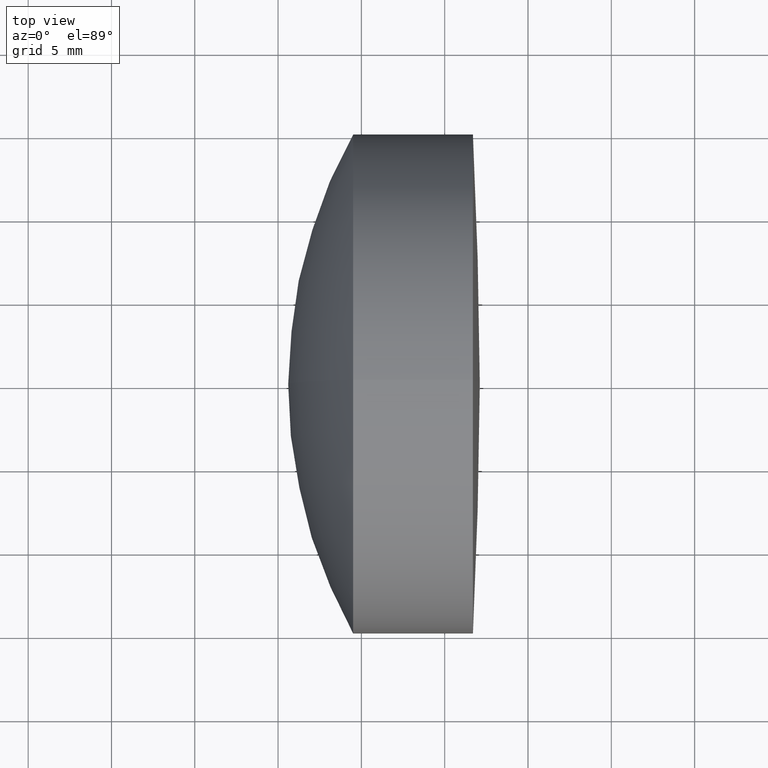
[diagram: clean part render]
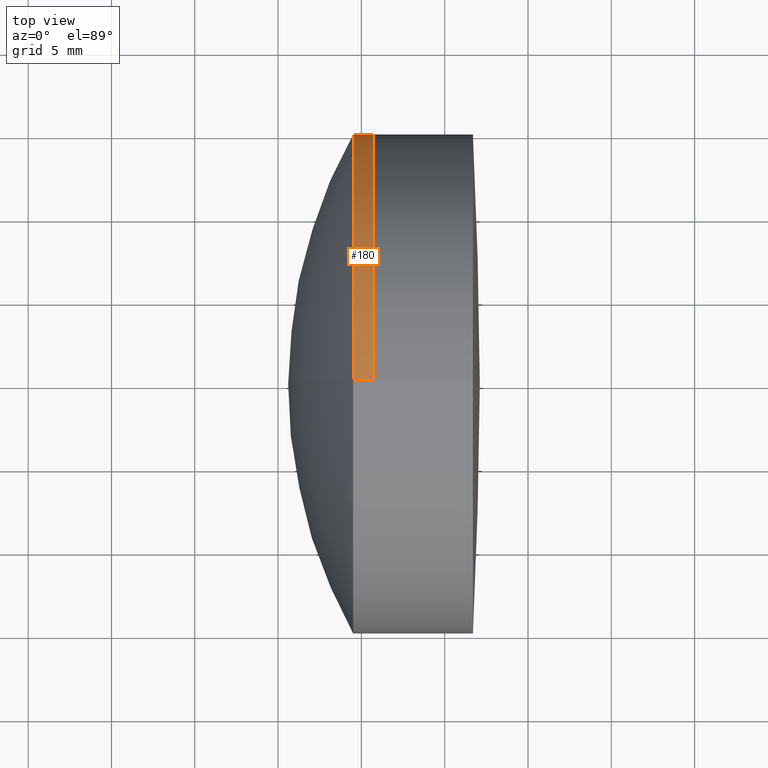
[diagram: same view with one face highlighted and labeled with its STEP entity id]
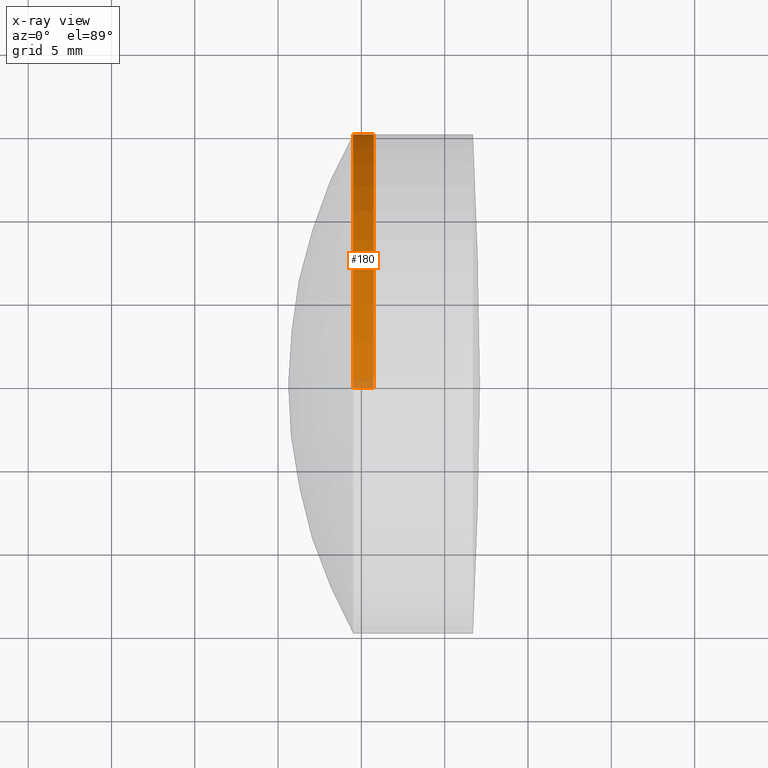
[diagram: x-ray of the same camera — body ghosted, the highlighted face saturated]
A machine part, top view. The second image highlights one B-rep face of the part: STEP entity #180.
The next image is the same camera in x-ray: the body ghosted, the highlighted face saturated — about 3% of this face is hidden behind the body in this view.
In plain terms, the highlighted cylindrical surface (partial cylindrical patch) has radius 15 mm, axis along (-1, -0, -0).
Its self-contained STEP definition (entity closure, byte-faithful):
#5 = CARTESIAN_POINT ( 'NONE',  ( 124.5233095260452400, 0.0000000000000000000, 0.0000000000000000000 ) ) ;
#11 = VERTEX_POINT ( 'NONE', #252 ) ;
#27 = VECTOR ( 'NONE', #139, 1000.000000000000000 ) ;
#28 = CIRCLE ( 'NONE', #95, 15.00000000000000000 ) ;
#63 = DIRECTION ( 'NONE',  ( 0.0000000000000000000, 0.0000000000000000000, 1.000000000000000000 ) ) ;
#67 = AXIS2_PLACEMENT_3D ( 'NONE', #5, #315, #283 ) ;
#79 = EDGE_LOOP ( 'NONE', ( #117, #249, #281, #129 ) ) ;
#84 = DIRECTION ( 'NONE',  ( 0.0000000000000000000, 0.0000000000000000000, 1.000000000000000000 ) ) ;
#92 = EDGE_CURVE ( 'NONE', #122, #333, #28, .T. ) ;
#93 = AXIS2_PLACEMENT_3D ( 'NONE', #119, #277, #84 ) ;
#95 = AXIS2_PLACEMENT_3D ( 'NONE', #99, #285, #63 ) ;
#99 = CARTESIAN_POINT ( 'NONE',  ( 340.7316331292209400, 0.0000000000000000000, 0.0000000000000000000 ) ) ;
#117 = ORIENTED_EDGE ( 'NONE', *, *, #92, .T. ) ;
#119 = CARTESIAN_POINT ( 'NONE',  ( 339.5064076100440500, 0.0000000000000000000, 0.0000000000000000000 ) ) ;
#122 = VERTEX_POINT ( 'NONE', #316 ) ;
#125 = CIRCLE ( 'NONE', #93, 14.99999999999999800 ) ;
#129 = ORIENTED_EDGE ( 'NONE', *, *, #214, .F. ) ;
#139 = DIRECTION ( 'NONE',  ( -1.000000000000000000, -0.0000000000000000000, -0.0000000000000000000 ) ) ;
#143 = CARTESIAN_POINT ( 'NONE',  ( 340.7316331292209400, 1.836970198721029600E-015, -15.00000000000000000 ) ) ;
#155 = CYLINDRICAL_SURFACE ( 'NONE', #67, 15.00000000000000000 ) ;
#160 = CARTESIAN_POINT ( 'NONE',  ( 124.5233095260452400, 1.836970198721029600E-015, -15.00000000000000000 ) ) ;
#165 = DIRECTION ( 'NONE',  ( -1.000000000000000000, -0.0000000000000000000, -0.0000000000000000000 ) ) ;
#170 = CARTESIAN_POINT ( 'NONE',  ( 339.5064076100440500, 0.0000000000000000000, 15.00000000000001800 ) ) ;
#180 = ADVANCED_FACE ( 'NONE', ( #338 ), #155, .T. ) ;
#214 = EDGE_CURVE ( 'NONE', #122, #279, #271, .T. ) ;
#227 = EDGE_CURVE ( 'NONE', #333, #11, #246, .T. ) ;
#246 = LINE ( 'NONE', #160, #27 ) ;
#249 = ORIENTED_EDGE ( 'NONE', *, *, #227, .T. ) ;
#252 = CARTESIAN_POINT ( 'NONE',  ( 339.5064076100440500, 1.836970198721032300E-015, -15.00000000000002000 ) ) ;
#271 = LINE ( 'NONE', #321, #309 ) ;
#277 = DIRECTION ( 'NONE',  ( -1.000000000000000000, -0.0000000000000000000, -0.0000000000000000000 ) ) ;
#279 = VERTEX_POINT ( 'NONE', #170 ) ;
#281 = ORIENTED_EDGE ( 'NONE', *, *, #284, .F. ) ;
#283 = DIRECTION ( 'NONE',  ( 0.0000000000000000000, 0.0000000000000000000, 1.000000000000000000 ) ) ;
#284 = EDGE_CURVE ( 'NONE', #279, #11, #125, .T. ) ;
#285 = DIRECTION ( 'NONE',  ( -1.000000000000000000, -0.0000000000000000000, -0.0000000000000000000 ) ) ;
#309 = VECTOR ( 'NONE', #165, 1000.000000000000000 ) ;
#315 = DIRECTION ( 'NONE',  ( -1.000000000000000000, -0.0000000000000000000, -0.0000000000000000000 ) ) ;
#316 = CARTESIAN_POINT ( 'NONE',  ( 340.7316331292209400, 0.0000000000000000000, 15.00000000000000000 ) ) ;
#321 = CARTESIAN_POINT ( 'NONE',  ( 124.5233095260452400, 0.0000000000000000000, 15.00000000000000000 ) ) ;
#333 = VERTEX_POINT ( 'NONE', #143 ) ;
#338 = FACE_OUTER_BOUND ( 'NONE', #79, .T. ) ;